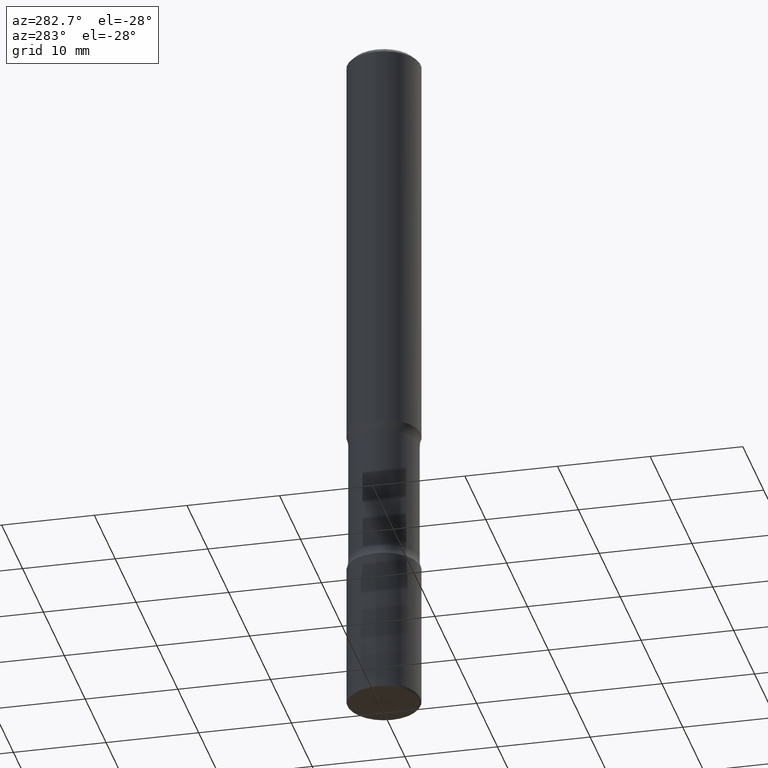
[diagram: clean part render]
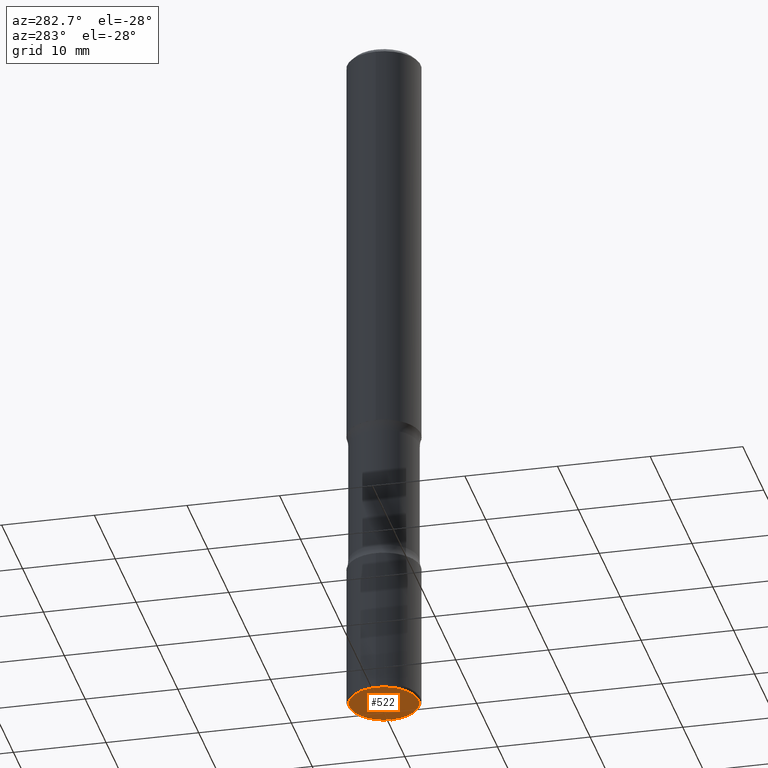
[diagram: same view with one face highlighted and labeled with its STEP entity id]
A machine part, auxiliary view. The second image highlights one B-rep face of the part: STEP entity #522.
In plain terms, the highlighted planar face has unit normal (0, -0, -1).
Its self-contained STEP definition (entity closure, byte-faithful):
#3 = AXIS2_PLACEMENT_3D ( 'NONE', #444, #455, #98 ) ;
#39 = CARTESIAN_POINT ( 'NONE',  ( -0.1462500000000001021, -9.382290721998072185E-15, -3.000000000000000888 ) ) ;
#43 = EDGE_CURVE ( 'NONE', #524, #116, #551, .T. ) ;
#92 = FACE_OUTER_BOUND ( 'NONE', #227, .T. ) ;
#98 = DIRECTION ( 'NONE',  ( 1.000000000000000000, -6.982962677686266711E-15, 0.000000000000000000 ) ) ;
#116 = VERTEX_POINT ( 'NONE', #185 ) ;
#120 = EDGE_CURVE ( 'NONE', #116, #524, #294, .T. ) ;
#175 = DIRECTION ( 'NONE',  ( -1.000000000000000000, 6.982962677686265922E-15, -4.876176775795935793E-29 ) ) ;
#185 = CARTESIAN_POINT ( 'NONE',  ( 0.1462500000000001021, -1.149570230814105617E-14, -3.000000000000000888 ) ) ;
#227 = EDGE_LOOP ( 'NONE', ( #285, #326 ) ) ;
#256 = DIRECTION ( 'NONE',  ( -2.445468806185136597E-29, 3.491481338843145583E-15, 1.000000000000000000 ) ) ;
#285 = ORIENTED_EDGE ( 'NONE', *, *, #120, .F. ) ;
#294 = CIRCLE ( 'NONE', #3, 0.1462500000000001021 ) ;
#326 = ORIENTED_EDGE ( 'NONE', *, *, #43, .F. ) ;
#390 = AXIS2_PLACEMENT_3D ( 'NONE', #512, #256, #518 ) ;
#391 = AXIS2_PLACEMENT_3D ( 'NONE', #517, #491, #175 ) ;
#444 = CARTESIAN_POINT ( 'NONE',  ( 7.336406418555412032E-29, -1.047444401652943951E-14, -3.000000000000000888 ) ) ;
#455 = DIRECTION ( 'NONE',  ( -2.445468806185136597E-29, 3.491481338843145583E-15, 1.000000000000000000 ) ) ;
#491 = DIRECTION ( 'NONE',  ( 2.438088387897960049E-29, -3.491481338843145188E-15, -1.000000000000000000 ) ) ;
#507 = PLANE ( 'NONE',  #391 ) ;
#512 = CARTESIAN_POINT ( 'NONE',  ( 7.336406418555412032E-29, -1.047444401652943951E-14, -3.000000000000000888 ) ) ;
#517 = CARTESIAN_POINT ( 'NONE',  ( -8.316018263183792163E-29, -3.288960704146697258E-14, -3.000000000000000444 ) ) ;
#518 = DIRECTION ( 'NONE',  ( 1.000000000000000000, -6.982962677686266711E-15, 0.000000000000000000 ) ) ;
#522 = ADVANCED_FACE ( 'NONE', ( #92 ), #507, .T. ) ;
#524 = VERTEX_POINT ( 'NONE', #39 ) ;
#551 = CIRCLE ( 'NONE', #390, 0.1462500000000001021 ) ;